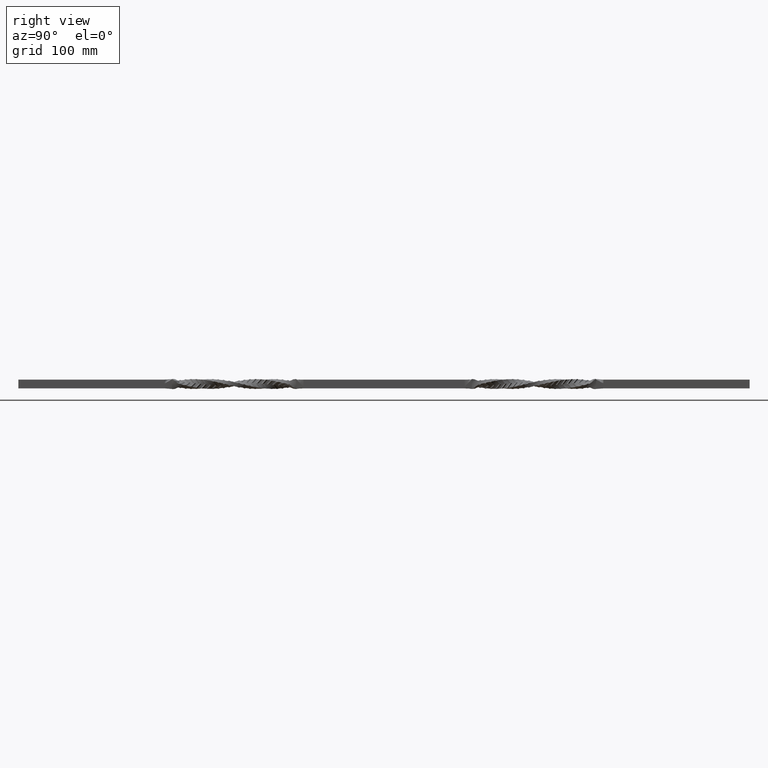
[diagram: clean part render]
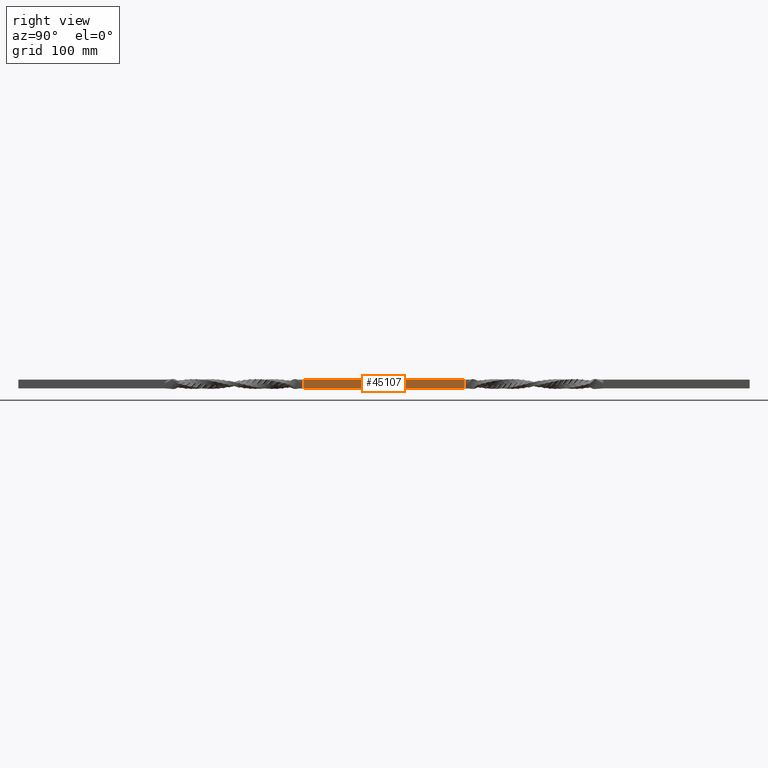
[diagram: same view with one face highlighted and labeled with its STEP entity id]
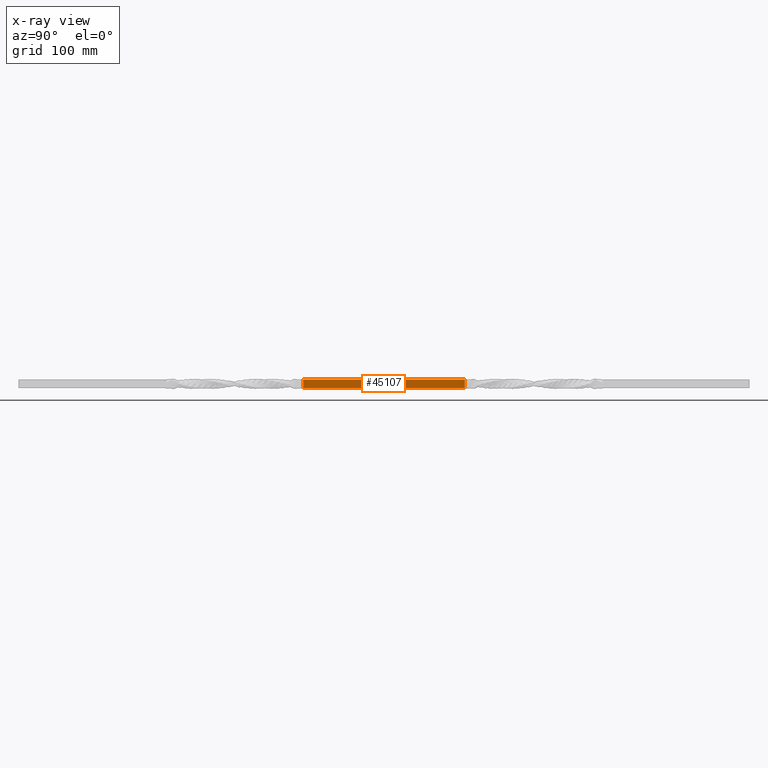
[diagram: x-ray of the same camera — body ghosted, the highlighted face saturated]
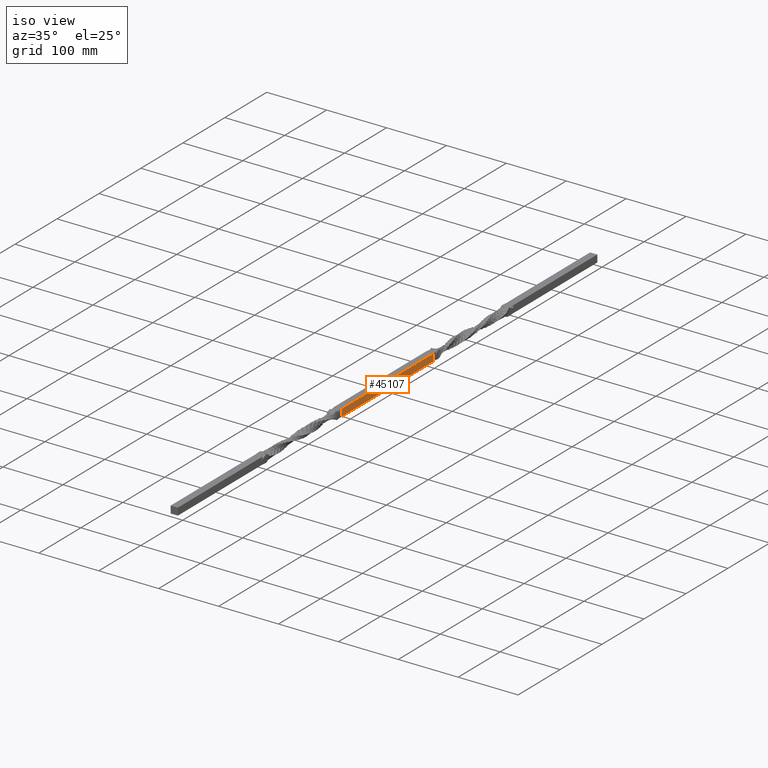
[diagram: same view with one face highlighted and labeled with its STEP entity id]
A machine part, right view. The second image highlights one B-rep face of the part: STEP entity #45107.
The next image is the same camera in x-ray: the body ghosted, the highlighted face saturated — about 0% of this face is hidden behind the body in this view.
A second angle (iso view) of the same face is appended — the face is thin or edge-on in the first view.
In plain terms, the highlighted planar face has unit normal (-1, 0, 0).
Its self-contained STEP definition (entity closure, byte-faithful):
#615 = VECTOR ( 'NONE', #45036, 1000.000000000000000 ) ;
#1060 = DIRECTION ( 'NONE',  ( 0.000000000000000000, 0.000000000000000000, -1.000000000000000000 ) ) ;
#2038 = ORIENTED_EDGE ( 'NONE', *, *, #158887, .F. ) ;
#3088 = EDGE_CURVE ( 'NONE', #17311, #40521, #134957, .T. ) ;
#3402 = LINE ( 'NONE', #96719, #7320 ) ;
#7320 = VECTOR ( 'NONE', #72028, 1000.000000000000000 ) ;
#8447 = LINE ( 'NONE', #68050, #615 ) ;
#14887 = EDGE_CURVE ( 'NONE', #26768, #59395, #3402, .T. ) ;
#17311 = VERTEX_POINT ( 'NONE', #39703 ) ;
#17686 = VERTEX_POINT ( 'NONE', #24186 ) ;
#19802 = ORIENTED_EDGE ( 'NONE', *, *, #28973, .T. ) ;
#24186 = CARTESIAN_POINT ( 'NONE',  ( 6.000000000000011546, 170.0000000000000000, -3.744603204328716295 ) ) ;
#25166 = CARTESIAN_POINT ( 'NONE',  ( 6.000000000000011546, 170.0000000000000000, -5.417434343423019882 ) ) ;
#26768 = VERTEX_POINT ( 'NONE', #25166 ) ;
#28390 = PLANE ( 'NONE',  #130935 ) ;
#28973 = EDGE_CURVE ( 'NONE', #17311, #112731, #122487, .T. ) ;
#29838 = EDGE_LOOP ( 'NONE', ( #32182, #53262, #109723, #49155, #2038, #59684, #67177, #19802 ) ) ;
#31129 = CARTESIAN_POINT ( 'NONE',  ( 6.000000000000011546, 390.0000000000000000, 6.000000000000008882 ) ) ;
#32182 = ORIENTED_EDGE ( 'NONE', *, *, #39993, .T. ) ;
#34343 = DIRECTION ( 'NONE',  ( 0.000000000000000000, 0.000000000000000000, 1.000000000000000000 ) ) ;
#39198 = DIRECTION ( 'NONE',  ( 0.000000000000000000, 0.000000000000000000, -1.000000000000000000 ) ) ;
#39703 = CARTESIAN_POINT ( 'NONE',  ( 5.999999999999988454, 390.0000000000000000, 5.999999999999991118 ) ) ;
#39993 = EDGE_CURVE ( 'NONE', #112731, #17686, #8447, .T. ) ;
#40521 = VERTEX_POINT ( 'NONE', #121846 ) ;
#42613 = VECTOR ( 'NONE', #67061, 1000.000000000000000 ) ;
#44260 = DIRECTION ( 'NONE',  ( -0.000000000000000000, -1.000000000000000000, -0.000000000000000000 ) ) ;
#45036 = DIRECTION ( 'NONE',  ( 0.000000000000000000, 0.000000000000000000, -1.000000000000000000 ) ) ;
#45107 = ADVANCED_FACE ( 'NONE', ( #82785 ), #28390, .F. ) ;
#49155 = ORIENTED_EDGE ( 'NONE', *, *, #91661, .F. ) ;
#49906 = VECTOR ( 'NONE', #44260, 1000.000000000000000 ) ;
#51775 = EDGE_CURVE ( 'NONE', #40521, #78860, #133479, .T. ) ;
#53262 = ORIENTED_EDGE ( 'NONE', *, *, #80497, .T. ) ;
#59395 = VERTEX_POINT ( 'NONE', #63734 ) ;
#59684 = ORIENTED_EDGE ( 'NONE', *, *, #51775, .F. ) ;
#59735 = DIRECTION ( 'NONE',  ( 0.000000000000000000, 0.000000000000000000, -1.000000000000000000 ) ) ;
#60832 = CARTESIAN_POINT ( 'NONE',  ( 6.000000000000011546, 390.0000000000000000, 6.000000000000008882 ) ) ;
#63734 = CARTESIAN_POINT ( 'NONE',  ( 6.000000000000011546, 170.0000000000000000, -5.999999999999991118 ) ) ;
#65782 = CARTESIAN_POINT ( 'NONE',  ( 6.000000000000011546, 170.0000000000000000, 6.000000000000008882 ) ) ;
#67061 = DIRECTION ( 'NONE',  ( -0.000000000000000000, -1.000000000000000000, -0.000000000000000000 ) ) ;
#67177 = ORIENTED_EDGE ( 'NONE', *, *, #3088, .F. ) ;
#68050 = CARTESIAN_POINT ( 'NONE',  ( 6.000000000000011546, 170.0000000000000000, 6.000000000000008882 ) ) ;
#72028 = DIRECTION ( 'NONE',  ( 0.000000000000000000, 0.000000000000000000, -1.000000000000000000 ) ) ;
#75503 = CARTESIAN_POINT ( 'NONE',  ( 6.000000000000011546, 390.0000000000000000, 6.000000000000008882 ) ) ;
#77919 = VECTOR ( 'NONE', #103611, 1000.000000000000000 ) ;
#78860 = VERTEX_POINT ( 'NONE', #90862 ) ;
#80497 = EDGE_CURVE ( 'NONE', #17686, #26768, #138675, .T. ) ;
#81609 = VECTOR ( 'NONE', #1060, 1000.000000000000000 ) ;
#82785 = FACE_OUTER_BOUND ( 'NONE', #29838, .T. ) ;
#90862 = CARTESIAN_POINT ( 'NONE',  ( 6.000000000000011546, 390.0000000000000000, -5.417434343423019882 ) ) ;
#91661 = EDGE_CURVE ( 'NONE', #132354, #59395, #146378, .T. ) ;
#93393 = CARTESIAN_POINT ( 'NONE',  ( 5.999999999999988454, 280.0000000000000000, -5.999999999999991118 ) ) ;
#96719 = CARTESIAN_POINT ( 'NONE',  ( 6.000000000000011546, 170.0000000000000000, 6.000000000000008882 ) ) ;
#101730 = VECTOR ( 'NONE', #59735, 1000.000000000000000 ) ;
#103611 = DIRECTION ( 'NONE',  ( 0.000000000000000000, 0.000000000000000000, -1.000000000000000000 ) ) ;
#109723 = ORIENTED_EDGE ( 'NONE', *, *, #14887, .T. ) ;
#110508 = CARTESIAN_POINT ( 'NONE',  ( 5.999999999999988454, 170.0000000000000000, 5.999999999999991118 ) ) ;
#110945 = LINE ( 'NONE', #75503, #81609 ) ;
#112731 = VERTEX_POINT ( 'NONE', #110508 ) ;
#121846 = CARTESIAN_POINT ( 'NONE',  ( 6.000000000000011546, 390.0000000000000000, -3.744603204328716295 ) ) ;
#122487 = LINE ( 'NONE', #133416, #49906 ) ;
#130935 = AXIS2_PLACEMENT_3D ( 'NONE', #146542, #133965, #34343 ) ;
#132354 = VERTEX_POINT ( 'NONE', #161542 ) ;
#133416 = CARTESIAN_POINT ( 'NONE',  ( 5.999999999999988454, 280.0000000000000000, 5.999999999999991118 ) ) ;
#133479 = LINE ( 'NONE', #31129, #143249 ) ;
#133965 = DIRECTION ( 'NONE',  ( -1.000000000000000000, 0.000000000000000000, 0.000000000000000000 ) ) ;
#134957 = LINE ( 'NONE', #60832, #101730 ) ;
#138675 = LINE ( 'NONE', #65782, #77919 ) ;
#143249 = VECTOR ( 'NONE', #39198, 1000.000000000000000 ) ;
#146378 = LINE ( 'NONE', #93393, #42613 ) ;
#146542 = CARTESIAN_POINT ( 'NONE',  ( 5.999999999999988454, 280.0000000000000000, 5.999999999999991118 ) ) ;
#158887 = EDGE_CURVE ( 'NONE', #78860, #132354, #110945, .T. ) ;
#161542 = CARTESIAN_POINT ( 'NONE',  ( 6.000000000000011546, 390.0000000000000000, -5.999999999999991118 ) ) ;